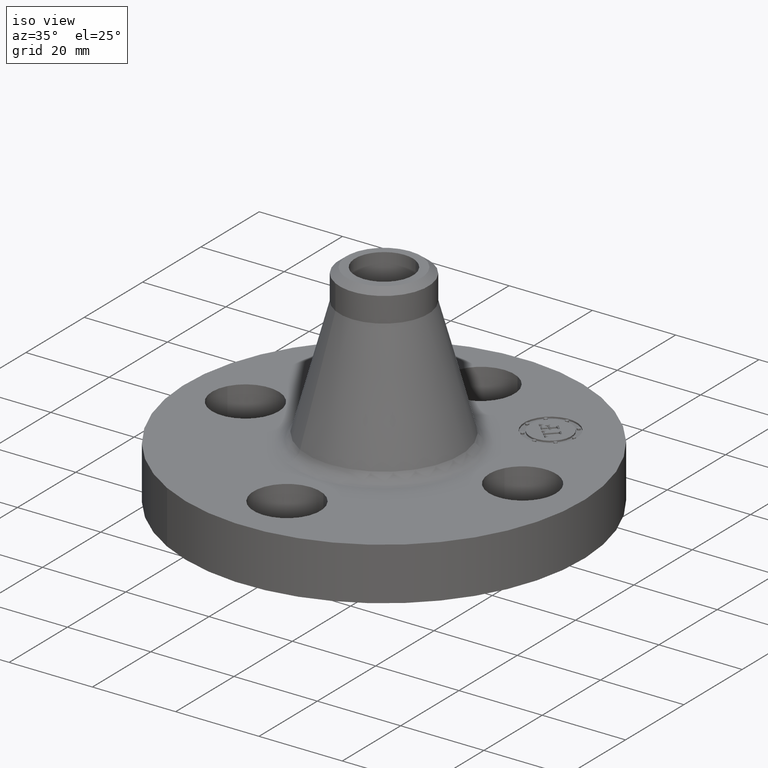
[diagram: clean part render]
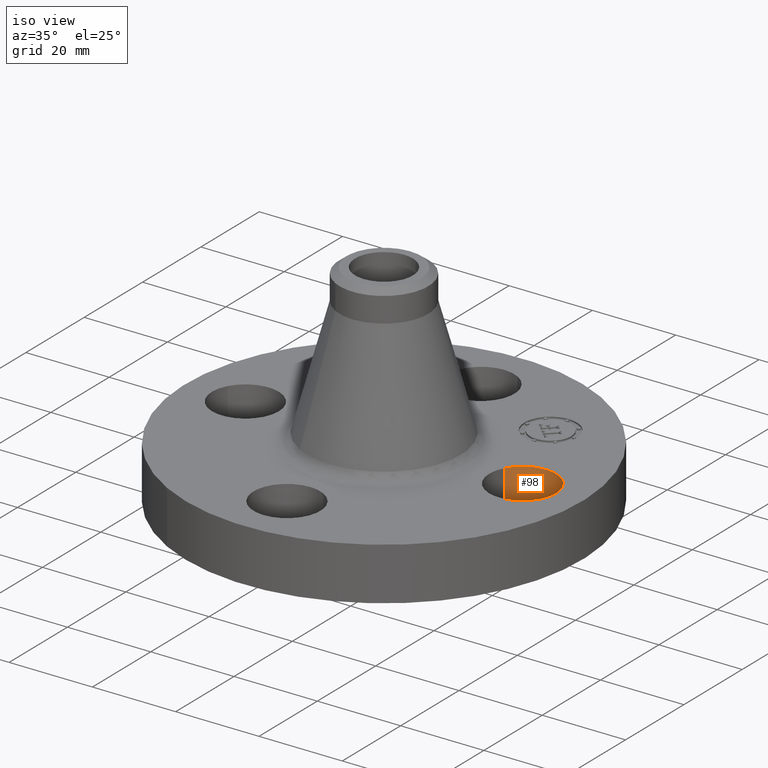
[diagram: same view with one face highlighted and labeled with its STEP entity id]
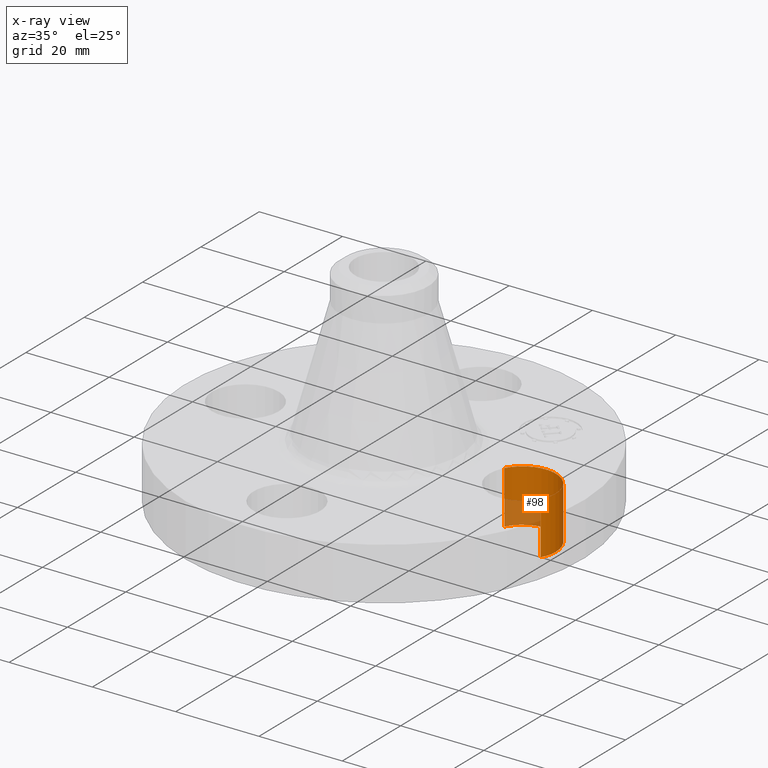
[diagram: x-ray of the same camera — body ghosted, the highlighted face saturated]
A machine part, iso view. The second image highlights one B-rep face of the part: STEP entity #98.
The next image is the same camera in x-ray: the body ghosted, the highlighted face saturated — about 23% of this face is hidden behind the body in this view.
In plain terms, the highlighted cylindrical surface (partial cylindrical patch) has radius 8.001 mm, axis along (0, -0, -1).
Its self-contained STEP definition (entity closure, byte-faithful):
#38=AXIS2_PLACEMENT_3D('Cylinder Axis2P3D',#35,#36,#37) ;
#35=CARTESIAN_POINT('Axis2P3D Location',(1.31000000001,0.,0.496062992128)) ;
#40=CARTESIAN_POINT('Line Origine',(1.03356149301,0.151019044661,0.250000000001)) ;
#44=CARTESIAN_POINT('Vertex',(1.03356149304,0.151019044675,0.)) ;
#46=CARTESIAN_POINT('Vertex',(1.03356149301,0.151019044661,0.499999999987)) ;
#50=CARTESIAN_POINT('Control Point',(1.03356149301,0.151019044661,0.)) ;
#51=CARTESIAN_POINT('Control Point',(1.05728350908,0.194441903798,8.34104439061E-013)) ;
#52=CARTESIAN_POINT('Control Point',(1.08953158359,0.233206955974,1.66820887812E-012)) ;
#53=CARTESIAN_POINT('Control Point',(1.12909312141,0.265074533342,2.50231331718E-012)) ;
#54=CARTESIAN_POINT('Control Point',(1.21857978084,0.311580534084,4.17052219531E-012)) ;
#55=CARTESIAN_POINT('Control Point',(1.31900750771,0.320796932274,5.83873107343E-012)) ;
#56=CARTESIAN_POINT('Control Point',(1.36951551943,0.315356480668,6.67283551249E-012)) ;
#57=CARTESIAN_POINT('Control Point',(1.46567685163,0.28496456545,8.34104439061E-012)) ;
#58=CARTESIAN_POINT('Control Point',(1.54320695598,0.220468416416,1.00092532687E-011)) ;
#59=CARTESIAN_POINT('Control Point',(1.57507453335,0.180906878601,1.08433577078E-011)) ;
#60=CARTESIAN_POINT('Control Point',(1.62158053409,0.0914202191715,1.25115665859E-011)) ;
#61=CARTESIAN_POINT('Control Point',(1.63079693228,-0.00900750770346,1.4179775464E-011)) ;
#62=CARTESIAN_POINT('Control Point',(1.62535648068,-0.059515519424,1.50138799031E-011)) ;
#63=CARTESIAN_POINT('Control Point',(1.61016052307,-0.107596185523,1.58479843422E-011)) ;
#64=CARTESIAN_POINT('Control Point',(1.58643850701,-0.151019044661,1.66820887812E-011)) ;
#65=CARTESIAN_POINT('Vertex',(1.58643850701,-0.151019044661,1.66820887812E-011)) ;
#68=CARTESIAN_POINT('Line Origine',(1.58643850701,-0.151019044661,0.250000000001)) ;
#72=CARTESIAN_POINT('Vertex',(1.58643850697,-0.151019044665,0.500000000002)) ;
#76=CARTESIAN_POINT('Control Point',(1.03356149301,0.151019044661,0.500000000002)) ;
#77=CARTESIAN_POINT('Control Point',(1.05728350908,0.194441903798,0.500000000001)) ;
#78=CARTESIAN_POINT('Control Point',(1.08953158359,0.233206955974,0.500000000001)) ;
#79=CARTESIAN_POINT('Control Point',(1.12909312141,0.265074533342,0.5)) ;
#80=CARTESIAN_POINT('Control Point',(1.21857978084,0.311580534084,0.499999999998)) ;
#81=CARTESIAN_POINT('Control Point',(1.31900750771,0.320796932274,0.499999999997)) ;
#82=CARTESIAN_POINT('Control Point',(1.36951551943,0.315356480668,0.499999999996)) ;
#83=CARTESIAN_POINT('Control Point',(1.46567685163,0.28496456545,0.499999999995)) ;
#84=CARTESIAN_POINT('Control Point',(1.54320695598,0.220468416416,0.499999999993)) ;
#85=CARTESIAN_POINT('Control Point',(1.57507453335,0.180906878601,0.499999999992)) ;
#86=CARTESIAN_POINT('Control Point',(1.62158053409,0.0914202191715,0.499999999991)) ;
#87=CARTESIAN_POINT('Control Point',(1.63079693228,-0.00900750770346,0.49999999999)) ;
#88=CARTESIAN_POINT('Control Point',(1.62535648068,-0.059515519424,0.499999999989)) ;
#89=CARTESIAN_POINT('Control Point',(1.61016052307,-0.107596185523,0.499999999988)) ;
#90=CARTESIAN_POINT('Control Point',(1.58643850701,-0.151019044661,0.499999999987)) ;
#36=DIRECTION('Axis2P3D Direction',(0.,-0.,-0.0393700787402)) ;
#37=DIRECTION('Axis2P3D XDirection',(-0.0345504945626,0.0188750212049,0.)) ;
#41=DIRECTION('Vector Direction',(0.,0.,-0.0393700787402)) ;
#69=DIRECTION('Vector Direction',(0.,0.,-0.0393700787402)) ;
#42=VECTOR('Line Direction',#41,0.0393700787402) ;
#70=VECTOR('Line Direction',#69,0.0393700787402) ;
#93=ORIENTED_EDGE('',*,*,#48,.F.) ;
#94=ORIENTED_EDGE('',*,*,#67,.T.) ;
#95=ORIENTED_EDGE('',*,*,#74,.T.) ;
#96=ORIENTED_EDGE('',*,*,#91,.F.) ;
#98=ADVANCED_FACE('PartBody',(#97),#39,.F.) ;
#49=B_SPLINE_CURVE_WITH_KNOTS('',5,(#50,#51,#52,#53,#54,#55,#56,#57,#58,#59,#60,#61,#62,#63,#64),.UNSPECIFIED.,.F.,.U.,(6,3,3,3,6),(-12.5679414107,-6.28397070536,8.881784197E-016,6.28397070536,12.5679414107),.UNSPECIFIED.) ;
#75=B_SPLINE_CURVE_WITH_KNOTS('',5,(#76,#77,#78,#79,#80,#81,#82,#83,#84,#85,#86,#87,#88,#89,#90),.UNSPECIFIED.,.F.,.U.,(6,3,3,3,6),(-12.5679414107,-6.28397070536,8.881784197E-016,6.28397070536,12.5679414107),.UNSPECIFIED.) ;
#39=CYLINDRICAL_SURFACE('generated cylinder',#38,0.315000000001) ;
#48=EDGE_CURVE('',#45,#47,#43,.F.) ;
#67=EDGE_CURVE('',#45,#66,#49,.T.) ;
#74=EDGE_CURVE('',#66,#73,#71,.F.) ;
#91=EDGE_CURVE('',#47,#73,#75,.T.) ;
#92=EDGE_LOOP('',(#93,#94,#95,#96)) ;
#97=FACE_OUTER_BOUND('',#92,.T.) ;
#43=LINE('Line',#40,#42) ;
#71=LINE('Line',#68,#70) ;
#45=VERTEX_POINT('',#44) ;
#47=VERTEX_POINT('',#46) ;
#66=VERTEX_POINT('',#65) ;
#73=VERTEX_POINT('',#72) ;